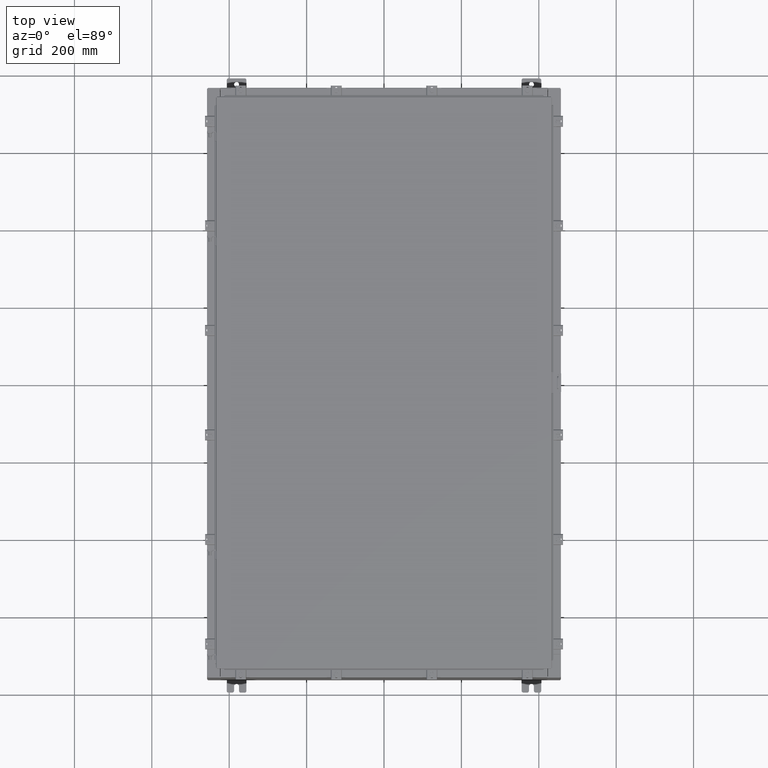
[diagram: clean part render]
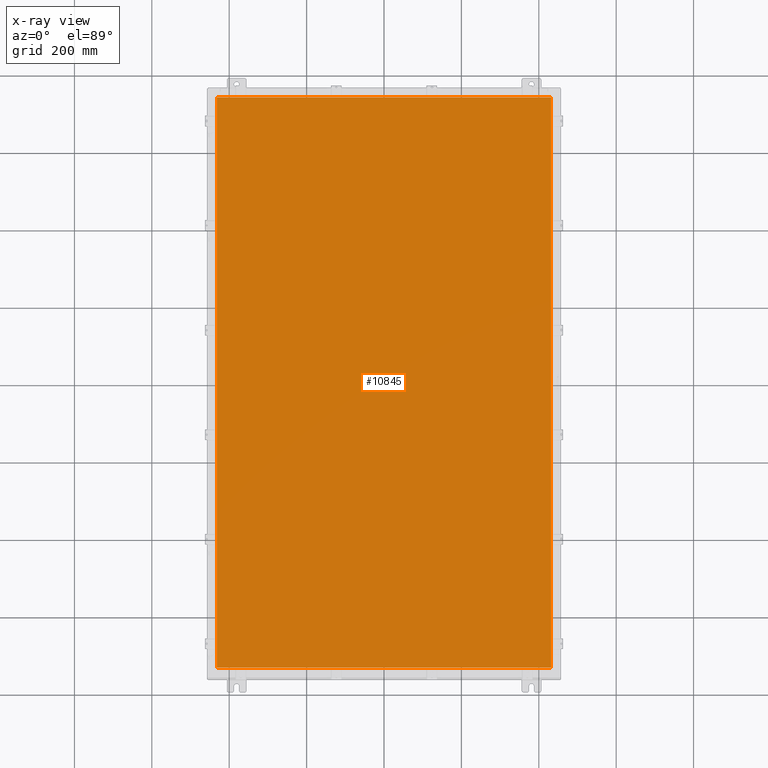
[diagram: x-ray — body ghosted, one internal face saturated and labeled with its STEP entity id]
A machine part, top view, then the same camera in x-ray: the body is ghosted and one INTERNAL B-rep face — a face not visible from any outside direction — is saturated and labeled: STEP entity #10845.
In plain terms, the highlighted planar face has unit normal (0, 0, -1).
Its self-contained STEP definition (entity closure, byte-faithful):
#1371 = CARTESIAN_POINT ( 'NONE',  ( 16.99030000000000500, 29.00630000000000000, -0.07470000000000000300 ) ) ;
#1725 = FACE_OUTER_BOUND ( 'NONE', #4131, .T. ) ;
#1836 = EDGE_CURVE ( 'NONE', #26361, #10052, #15838, .T. ) ;
#1846 = VECTOR ( 'NONE', #15281, 39.37007874015748100 ) ;
#1937 = ORIENTED_EDGE ( 'NONE', *, *, #27496, .F. ) ;
#2017 = CARTESIAN_POINT ( 'NONE',  ( -16.99029999999999800, 29.00630000000000000, -0.07470000000000000300 ) ) ;
#2611 = CARTESIAN_POINT ( 'NONE',  ( -16.99029999999999800, 29.00629999999998900, -0.07470000000000019700 ) ) ;
#2768 = EDGE_CURVE ( 'NONE', #22750, #26361, #3425, .T. ) ;
#3425 = LINE ( 'NONE', #3886, #8413 ) ;
#3886 = CARTESIAN_POINT ( 'NONE',  ( 16.99030000000000500, -29.00630000000000000, -0.07470000000000019700 ) ) ;
#3988 = DIRECTION ( 'NONE',  ( -1.000000000000000000, -0.0000000000000000000, -0.0000000000000000000 ) ) ;
#4131 = EDGE_LOOP ( 'NONE', ( #22332, #10475, #1937, #10779 ) ) ;
#4467 = DIRECTION ( 'NONE',  ( -1.000000000000000000, 0.0000000000000000000, -0.0000000000000000000 ) ) ;
#5484 = CARTESIAN_POINT ( 'NONE',  ( -16.99029999999999400, -29.00630000000000700, -0.07469999999999804600 ) ) ;
#6026 = DIRECTION ( 'NONE',  ( 0.0000000000000000000, 1.000000000000000000, 0.0000000000000000000 ) ) ;
#6527 = CARTESIAN_POINT ( 'NONE',  ( -16.99029999999999800, -29.00630000000000300, -0.07470000000000000300 ) ) ;
#6806 = LINE ( 'NONE', #2611, #1846 ) ;
#8413 = VECTOR ( 'NONE', #6026, 39.37007874015748100 ) ;
#8656 = CARTESIAN_POINT ( 'NONE',  ( 0.0000000000000000000, 0.0000000000000000000, -0.07470000000000000300 ) ) ;
#9485 = VECTOR ( 'NONE', #3988, 39.37007874015748100 ) ;
#10052 = VERTEX_POINT ( 'NONE', #2017 ) ;
#10475 = ORIENTED_EDGE ( 'NONE', *, *, #21349, .F. ) ;
#10779 = ORIENTED_EDGE ( 'NONE', *, *, #1836, .F. ) ;
#10787 = VECTOR ( 'NONE', #18309, 39.37007874015748100 ) ;
#10845 = ADVANCED_FACE ( 'NONE', ( #1725 ), #15137, .T. ) ;
#11786 = CARTESIAN_POINT ( 'NONE',  ( 16.99030000000000500, -29.00630000000000300, -0.07470000000000000300 ) ) ;
#15137 = PLANE ( 'NONE',  #19928 ) ;
#15281 = DIRECTION ( 'NONE',  ( 0.0000000000000000000, -1.000000000000000000, 0.0000000000000000000 ) ) ;
#15838 = LINE ( 'NONE', #18989, #9485 ) ;
#16488 = LINE ( 'NONE', #5484, #10787 ) ;
#17294 = DIRECTION ( 'NONE',  ( 0.0000000000000000000, 0.0000000000000000000, -1.000000000000000000 ) ) ;
#17470 = VERTEX_POINT ( 'NONE', #6527 ) ;
#18309 = DIRECTION ( 'NONE',  ( 1.000000000000000000, -0.0000000000000000000, -0.0000000000000000000 ) ) ;
#18989 = CARTESIAN_POINT ( 'NONE',  ( 16.99030000000000100, 29.00630000000000300, -0.07469999999999804600 ) ) ;
#19928 = AXIS2_PLACEMENT_3D ( 'NONE', #8656, #17294, #4467 ) ;
#21349 = EDGE_CURVE ( 'NONE', #17470, #22750, #16488, .T. ) ;
#22332 = ORIENTED_EDGE ( 'NONE', *, *, #2768, .F. ) ;
#22750 = VERTEX_POINT ( 'NONE', #11786 ) ;
#26361 = VERTEX_POINT ( 'NONE', #1371 ) ;
#27496 = EDGE_CURVE ( 'NONE', #10052, #17470, #6806, .T. ) ;